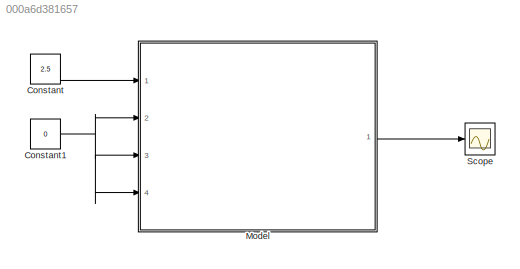
MODEL slx_000a6d381657
KIND model
BLOCK [Constant] Constant
  Value = 2.5
BLOCK [Constant] Constant1
  Value = 0
BLOCK [ModelReference] Model
  CopyOfModelName = voltage_integrator
  DefaultDataLogging = on
  ModelNameDialog = voltage_integrator
  ModelReferenceVersion = 1.4
  Ports = [4, 1]
BLOCK [Scope] Scope
  DataFormat = StructureWithTime
  Floating = off
  NumInputPorts = 1
  Ports = [1]
  SampleTime = 0
  ShowLegends = off
NET Constant1:1 -> Model:2, Model:3, Model:4
LINE Constant:1 -> Model:1
LINE Model:1 -> Scope:1
note: NET lines group one-source signal fan-out (src -> all destinations, sorted); 1:1 wires keep LINE
